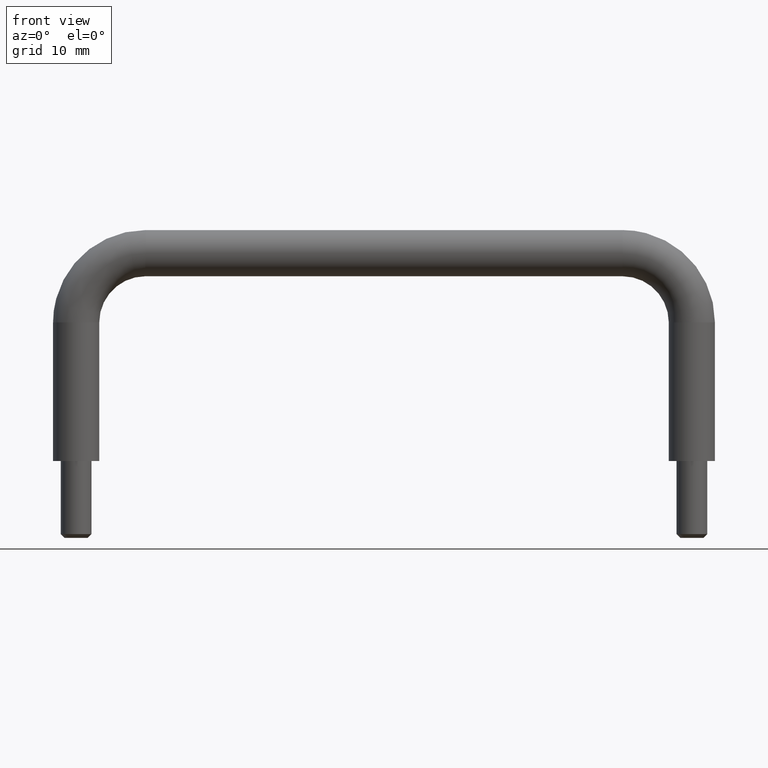
[diagram: clean part render]
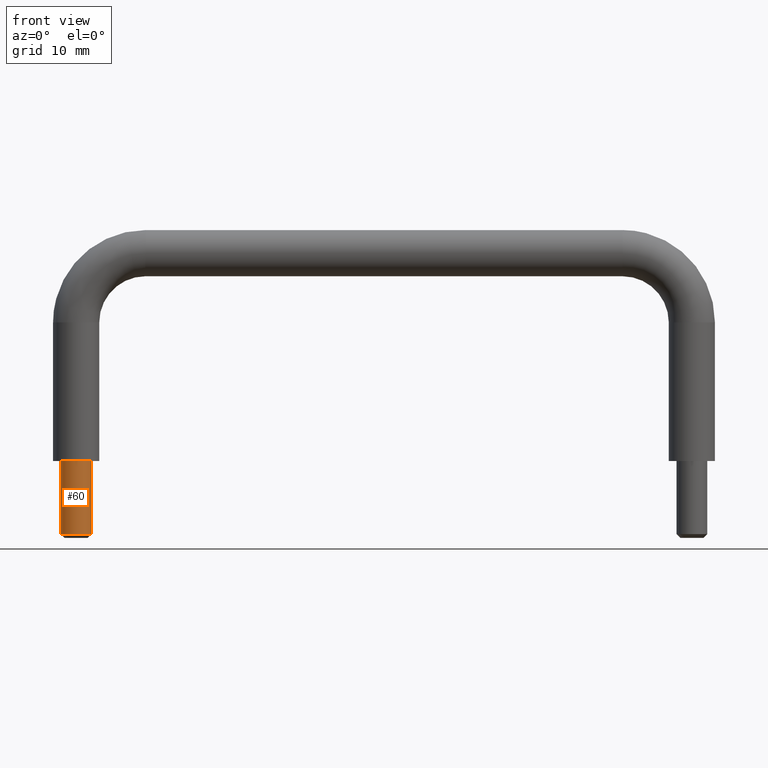
[diagram: same view with one face highlighted and labeled with its STEP entity id]
A machine part, front view. The second image highlights one B-rep face of the part: STEP entity #60.
In plain terms, the highlighted cylindrical surface (edge-blend (fillet) strip) has radius 2 mm, axis along (0, 0, -1).
Its self-contained STEP definition (entity closure, byte-faithful):
#60=ADVANCED_FACE('',(#265),#264,.T.);
#264=CYLINDRICAL_SURFACE('',#593,2.00000000000E+00);
#265=FACE_OUTER_BOUND('',#594,.T.);
#590=CARTESIAN_POINT('',(-3.99999999999E+01,0.00000000000E+00,-2.87500000000E+01));
#591=DIRECTION('',(0.00000000000E+00,0.00000000000E+00,-1.00000000000E+00));
#592=DIRECTION('',(1.00000000000E+00,-0.00000000000E+00,0.00000000000E+00));
#593=AXIS2_PLACEMENT_3D('',#590,#591,#592);
#594=EDGE_LOOP('',(#676,#677,#678,#679));
#676=ORIENTED_EDGE('',*,*,#712,.T.);
#677=ORIENTED_EDGE('',*,*,#724,.F.);
#678=ORIENTED_EDGE('',*,*,#702,.F.);
#679=ORIENTED_EDGE('',*,*,#725,.T.);
#702=EDGE_CURVE('',#850,#851,#852,.T.);
#712=EDGE_CURVE('',#914,#915,#916,.T.);
#724=EDGE_CURVE('',#851,#915,#990,.T.);
#725=EDGE_CURVE('',#850,#914,#996,.T.);
#850=VERTEX_POINT('',#1092);
#851=VERTEX_POINT('',#1093);
#852=CIRCLE('',#1097,2.00000000000E+00);
#914=VERTEX_POINT('',#1128);
#915=VERTEX_POINT('',#1129);
#916=CIRCLE('',#1133,2.00000000000E+00);
#990=(BOUNDED_CURVE() B_SPLINE_CURVE(1,(#1164,#1165),.UNSPECIFIED.,.F.,.F.) B_SPLINE_CURVE_WITH_KNOTS((2,2),(8.33333343261E-02,9.16666667006E-01),.UNSPECIFIED.) CURVE() GEOMETRIC_REPRESENTATION_ITEM() RATIONAL_B_SPLINE_CURVE((1.00000000000E+00,1.00000000000E+00)) REPRESENTATION_ITEM('') );
#996=(BOUNDED_CURVE() B_SPLINE_CURVE(1,(#1166,#1167),.UNSPECIFIED.,.F.,.F.) B_SPLINE_CURVE_WITH_KNOTS((2,2),(8.33333333333E-02,9.16666666667E-01),.UNSPECIFIED.) CURVE() GEOMETRIC_REPRESENTATION_ITEM() RATIONAL_B_SPLINE_CURVE((7.50000000000E-01,7.50000000000E-01)) REPRESENTATION_ITEM('') );
#1092=CARTESIAN_POINT('',(-4.19999999999E+01,2.44921270764E-16,-2.40000000000E+01));
#1093=CARTESIAN_POINT('',(-3.79999999999E+01,7.40148683083E-17,-2.40000000000E+01));
#1094=CARTESIAN_POINT('',(-3.99999999999E+01,0.00000000000E+00,-2.40000000000E+01));
#1095=DIRECTION('',(-0.00000000000E+00,0.00000000000E+00,1.00000000000E+00));
#1096=DIRECTION('',(-1.00000000000E+00,-0.00000000000E+00,-0.00000000000E+00));
#1097=AXIS2_PLACEMENT_3D('',#1094,#1095,#1096);
#1128=CARTESIAN_POINT('',(-4.19999999999E+01,2.44921270764E-16,-3.35000000000E+01));
#1129=CARTESIAN_POINT('',(-3.79999999999E+01,7.40148683083E-17,-3.35000000000E+01));
#1130=CARTESIAN_POINT('',(-3.99999999999E+01,0.00000000000E+00,-3.35000000000E+01));
#1131=DIRECTION('',(-0.00000000000E+00,0.00000000000E+00,1.00000000000E+00));
#1132=DIRECTION('',(-1.00000000000E+00,-0.00000000000E+00,-0.00000000000E+00));
#1133=AXIS2_PLACEMENT_3D('',#1130,#1131,#1132);
#1164=CARTESIAN_POINT('',(-3.79999999999E+01,0.00000000000E+00,-2.40000000113E+01));
#1165=CARTESIAN_POINT('',(-3.79999999999E+01,0.00000000000E+00,-3.35000000039E+01));
#1166=CARTESIAN_POINT('',(-4.19999999999E+01,7.40148683083E-17,-2.40000000000E+01));
#1167=CARTESIAN_POINT('',(-4.19999999999E+01,7.40148683083E-17,-3.35000000000E+01));